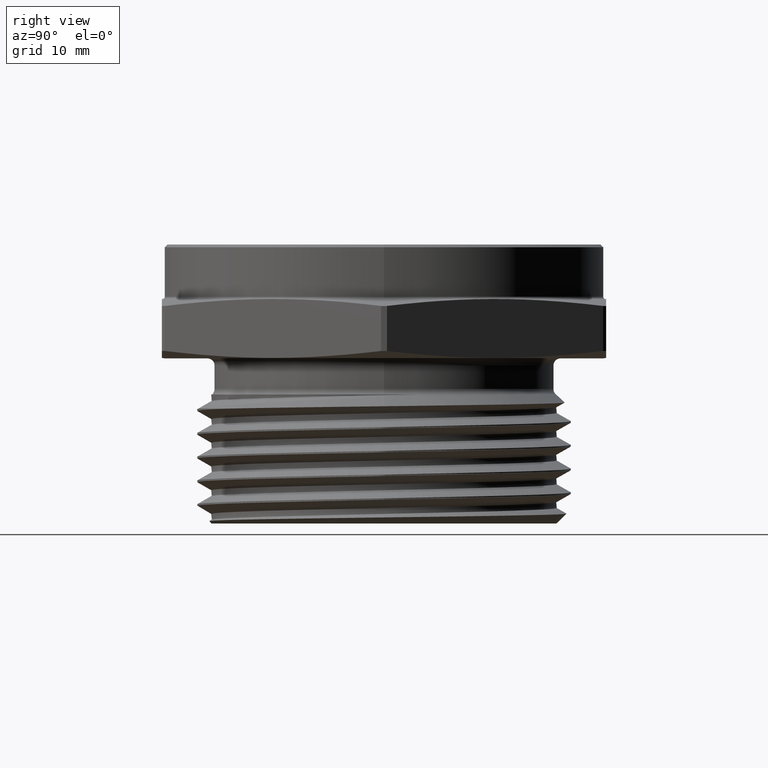
[diagram: clean part render]
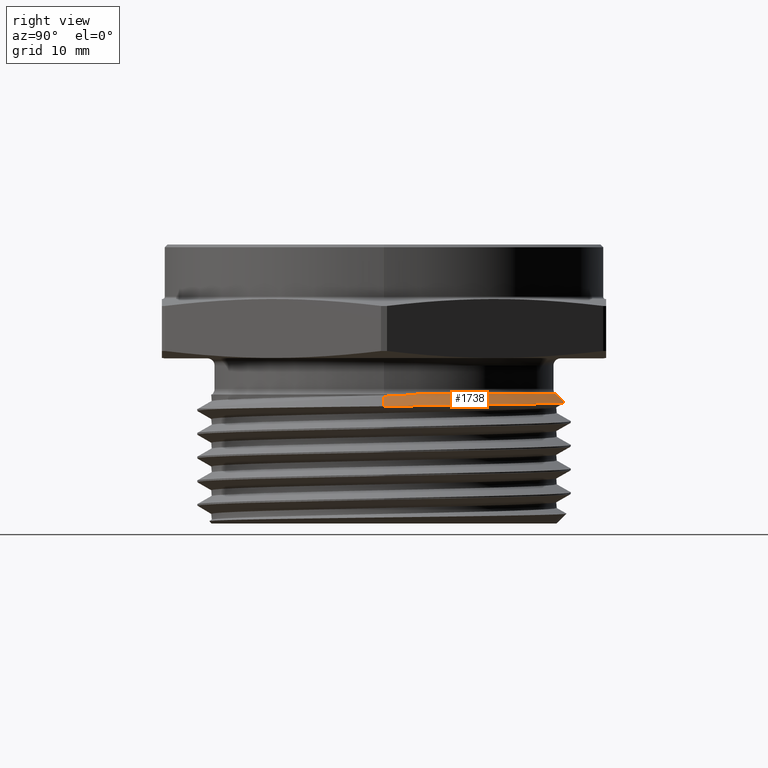
[diagram: same view with one face highlighted and labeled with its STEP entity id]
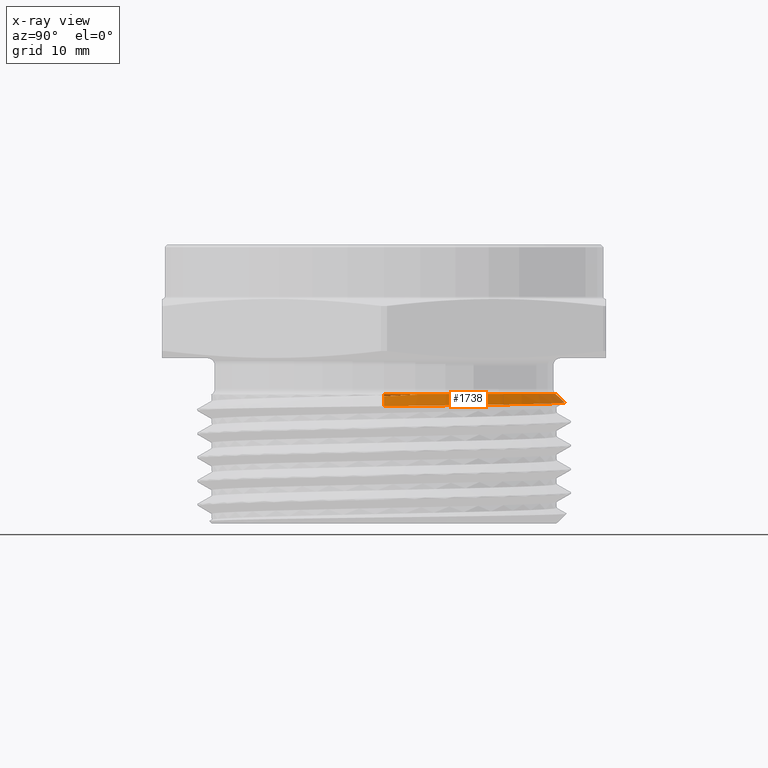
[diagram: x-ray of the same camera — body ghosted, the highlighted face saturated]
A machine part, right view. The second image highlights one B-rep face of the part: STEP entity #1738.
The next image is the same camera in x-ray: the body ghosted, the highlighted face saturated — about 1% of this face is hidden behind the body in this view.
In plain terms, the highlighted conical surface has half-angle 45 deg.
Its self-contained STEP definition (entity closure, byte-faithful):
#15 = B_SPLINE_CURVE_WITH_KNOTS ( 'NONE', 3,
 ( #656, #663, #668, #669 ),
 .UNSPECIFIED., .F., .F.,
 ( 4, 4 ),
 ( 0.02245773562977112000, 0.02560065844482746500 ),
 .UNSPECIFIED. ) ;
#18 = B_SPLINE_CURVE_WITH_KNOTS ( 'NONE', 3,
 ( #732, #728, #734, #735, #736, #737 ),
 .UNSPECIFIED., .F., .F.,
 ( 4, 2, 4 ),
 ( 2.720399444583038000E-015, 0.001553246563255459300, 0.003106493126508198100 ),
 .UNSPECIFIED. ) ;
#19 = B_SPLINE_CURVE_WITH_KNOTS ( 'NONE', 3,
 ( #738, #739, #744, #745, #746, #747, #748, #749, #750, #751, #752, #753, #754, #755, #756, #757, #758, #759, #760, #761, #762, #763, #764, #765, #766, #767, #768, #769, #770, #771, #772, #773, #774, #775, #776, #777, #778, #779, #780, #781, #782, #783, #784, #785, #786, #787, #788, #789, #790, #791, #792, #793 ),
 .UNSPECIFIED., .F., .F.,
 ( 4, 2, 2, 2, 2, 2, 2, 2, 2, 2, 2, 2, 2, 2, 2, 2, 2, 2, 2, 2, 2, 2, 2, 2, 2, 4 ),
 ( 0.02769738303600014600, 0.02928830172130021300, 0.03087922040660027700, 0.03406105777720040700, 0.03565197646250047000, 0.03724289514780053400, 0.03883381383310059700, 0.04042473251840066100, 0.04360656988900078700, 0.04519748857430085100, 0.04678840725960091400, 0.04997024463020104800, 0.05156116331550111800, 0.05315208200080118200, 0.05633391937140130900, 0.05951575674200144200, 0.06110667542730151300, 0.06269759411260157600, 0.06587943148320171700, 0.06747035016850178000, 0.06906126885380184400, 0.07224310622440197100, 0.07383402490970203400, 0.07542494359500209700, 0.07701586228030217500, 0.07860678096560223800 ),
 .UNSPECIFIED. ) ;
#143 = EDGE_LOOP ( 'NONE', ( #202, #203, #204, #205, #206, #207, #208 ) ) ;
#161 = VERTEX_POINT ( 'NONE', #3334 ) ;
#202 = ORIENTED_EDGE ( 'NONE', *, *, #1997, .F. ) ;
#203 = ORIENTED_EDGE ( 'NONE', *, *, #1993, .T. ) ;
#204 = ORIENTED_EDGE ( 'NONE', *, *, #1996, .F. ) ;
#205 = ORIENTED_EDGE ( 'NONE', *, *, #1989, .F. ) ;
#206 = ORIENTED_EDGE ( 'NONE', *, *, #1992, .T. ) ;
#207 = ORIENTED_EDGE ( 'NONE', *, *, #1998, .F. ) ;
#208 = ORIENTED_EDGE ( 'NONE', *, *, #1995, .F. ) ;
#656 = CARTESIAN_POINT ( 'NONE',  ( 0.6129016002266093300, -5.631799335591106200E-013, -0.1330792697562727700 ) ) ;
#663 = CARTESIAN_POINT ( 'NONE',  ( 0.6108917757817330400, 0.04059913264845195500, -0.1310694453113593900 ) ) ;
#668 = CARTESIAN_POINT ( 'NONE',  ( 0.6048198897454479800, 0.08094845224201294200, -0.1289881068263756300 ) ) ;
#669 = CARTESIAN_POINT ( 'NONE',  ( 0.5944536281719904300, 0.1210334931048311200, -0.1268276695296611800 ) ) ;
#671 = DIRECTION ( 'NONE',  ( -0.7071067811865493500, 0.0000000000000000000, -0.7071067811865456900 ) ) ;
#701 = CARTESIAN_POINT ( 'NONE',  ( 0.6048223304703364000, 7.406937310633401300E-017, -0.1249999999999999000 ) ) ;
#702 = CARTESIAN_POINT ( 'NONE',  ( 0.6048223304703364000, 7.406937310633401300E-017, -0.1249999999999999000 ) ) ;
#725 = CARTESIAN_POINT ( 'NONE',  ( -0.6048223304703364000, 0.0000000000000000000, -0.1249999999999999000 ) ) ;
#726 = DIRECTION ( 'NONE',  ( 0.7071067811865493500, 8.659560562354955000E-017, -0.7071067811865456900 ) ) ;
#727 = DIRECTION ( 'NONE',  ( 0.7071067811865493500, 8.659560562354955000E-017, -0.7071067811865456900 ) ) ;
#728 = CARTESIAN_POINT ( 'NONE',  ( 0.5985228310356489600, 0.1010476830284672800, -0.1268276695296635100 ) ) ;
#732 = CARTESIAN_POINT ( 'NONE',  ( 0.5944536281719904300, 0.1210334931048311200, -0.1268276695296611800 ) ) ;
#734 = CARTESIAN_POINT ( 'NONE',  ( 0.6015837808941704200, 0.08083243523769494100, -0.1268276695296636200 ) ) ;
#735 = CARTESIAN_POINT ( 'NONE',  ( 0.6056437281203342900, 0.04040547747377845600, -0.1268276695296635900 ) ) ;
#736 = CARTESIAN_POINT ( 'NONE',  ( 0.6066500000000002400, 0.02019919955713285800, -0.1268276695296636500 ) ) ;
#737 = CARTESIAN_POINT ( 'NONE',  ( 0.6066500000000002400, -9.008570109740810600E-016, -0.1268276695296635400 ) ) ;
#738 = CARTESIAN_POINT ( 'NONE',  ( -0.6215329153199463700, 5.709922702190077100E-013, -0.1417105848496098800 ) ) ;
#739 = CARTESIAN_POINT ( 'NONE',  ( -0.6218038588298322500, 0.02071372991814923700, -0.1419815283595149100 ) ) ;
#740 = CARTESIAN_POINT ( 'NONE',  ( 0.0000000000000000000, 0.0000000000000000000, -0.1249999999999999000 ) ) ;
#741 = DIRECTION ( 'NONE',  ( -0.0000000000000000000, -0.0000000000000000000, 1.000000000000000000 ) ) ;
#742 = DIRECTION ( 'NONE',  ( 1.000000000000000000, 0.0000000000000000000, 0.0000000000000000000 ) ) ;
#744 = CARTESIAN_POINT ( 'NONE',  ( -0.6210470801214494900, 0.04150238621615854500, -0.1422574870576855700 ) ) ;
#745 = CARTESIAN_POINT ( 'NONE',  ( -0.6174088940177964200, 0.08323459625465728900, -0.1428197143777754900 ) ) ;
#746 = CARTESIAN_POINT ( 'NONE',  ( -0.6145438439874993900, 0.1039298074478916400, -0.1431026575808558900 ) ) ;
#747 = CARTESIAN_POINT ( 'NONE',  ( -0.6029662588955236900, 0.1650582068360486300, -0.1439504805180528400 ) ) ;
#748 = CARTESIAN_POINT ( 'NONE',  ( -0.5912834387099477100, 0.2047441157589591200, -0.1445170530654176200 ) ) ;
#749 = CARTESIAN_POINT ( 'NONE',  ( -0.5677263147459585800, 0.2626502439137135000, -0.1453689771178024200 ) ) ;
#750 = CARTESIAN_POINT ( 'NONE',  ( -0.5588209532333988600, 0.2817318199607222700, -0.1456541397951190700 ) ) ;
#751 = CARTESIAN_POINT ( 'NONE',  ( -0.5393540349162625500, 0.3185121996426659700, -0.1462127604042327300 ) ) ;
#752 = CARTESIAN_POINT ( 'NONE',  ( -0.5287578538748254300, 0.3363137115949262300, -0.1464877016376370800 ) ) ;
#753 = CARTESIAN_POINT ( 'NONE',  ( -0.5058719063115533200, 0.3707611173368758900, -0.1470290613301428700 ) ) ;
#754 = CARTESIAN_POINT ( 'NONE',  ( -0.4935827075500975300, 0.3874073862782294000, -0.1472962424118164600 ) ) ;
#755 = CARTESIAN_POINT ( 'NONE',  ( -0.4673110758366932900, 0.4195441757696017300, -0.1478450092408961900 ) ) ;
#756 = CARTESIAN_POINT ( 'NONE',  ( -0.4532590534512177000, 0.4350991379774284400, -0.1481250350244891500 ) ) ;
#757 = CARTESIAN_POINT ( 'NONE',  ( -0.4089304690158602800, 0.4794828074889728200, -0.1489696453673241000 ) ) ;
#758 = CARTESIAN_POINT ( 'NONE',  ( -0.3768978241600682300, 0.5057154451159435700, -0.1495316611519433000 ) ) ;
#759 = CARTESIAN_POINT ( 'NONE',  ( -0.3252393082592667800, 0.5401796790011893500, -0.1503731031962092000 ) ) ;
#760 = CARTESIAN_POINT ( 'NONE',  ( -0.3074137802946397800, 0.5508476397906428800, -0.1506533210899980400 ) ) ;
#761 = CARTESIAN_POINT ( 'NONE',  ( -0.2705148763095397400, 0.5704948753800219700, -0.1512132420389302200 ) ) ;
#762 = CARTESIAN_POINT ( 'NONE',  ( -0.2515289605740692000, 0.5794145083312053400, -0.1514915101176861300 ) ) ;
#763 = CARTESIAN_POINT ( 'NONE',  ( -0.1939261795411546500, 0.6030790865717571300, -0.1523077567387710600 ) ) ;
#764 = CARTESIAN_POINT ( 'NONE',  ( -0.1543161754404692200, 0.6149548383244256600, -0.1528337945947762000 ) ) ;
#765 = CARTESIAN_POINT ( 'NONE',  ( -0.09310017355402723500, 0.6269508057438633000, -0.1536622111634523000 ) ) ;
#766 = CARTESIAN_POINT ( 'NONE',  ( -0.07227676099102418900, 0.6299761753387742600, -0.1539436398238878700 ) ) ;
#767 = CARTESIAN_POINT ( 'NONE',  ( -0.03076572673264227700, 0.6339225939843471400, -0.1545039093577085500 ) ) ;
#768 = CARTESIAN_POINT ( 'NONE',  ( -0.01004666517578324900, 0.6348629394433159500, -0.1547831803923372900 ) ) ;
#769 = CARTESIAN_POINT ( 'NONE',  ( 0.05200373704192859400, 0.6346585996117409800, -0.1556184574536970400 ) ) ;
#770 = CARTESIAN_POINT ( 'NONE',  ( 0.09322933998520113700, 0.6305181335877602100, -0.1561719414371110800 ) ) ;
#771 = CARTESIAN_POINT ( 'NONE',  ( 0.1753866155625770900, 0.6139096010059848000, -0.1572721290942073500 ) ) ;
#772 = CARTESIAN_POINT ( 'NONE',  ( 0.2150519598569933800, 0.6016779370583121800, -0.1577931105741725000 ) ) ;
#773 = CARTESIAN_POINT ( 'NONE',  ( 0.2723133941254887200, 0.5778071647573435100, -0.1586039734868152100 ) ) ;
#774 = CARTESIAN_POINT ( 'NONE',  ( 0.2910375871541865900, 0.5689182681134415900, -0.1588773313767012600 ) ) ;
#775 = CARTESIAN_POINT ( 'NONE',  ( 0.3277445798553639800, 0.5492367542025139400, -0.1594302854064182400 ) ) ;
#776 = CARTESIAN_POINT ( 'NONE',  ( 0.3457878301561909100, 0.5383926572690169700, -0.1597109362896742000 ) ) ;
#777 = CARTESIAN_POINT ( 'NONE',  ( 0.3976663305619352300, 0.5036505378602566000, -0.1605448020241140600 ) ) ;
#778 = CARTESIAN_POINT ( 'NONE',  ( 0.4296210660305641600, 0.4774094392850440900, -0.1610950096241039500 ) ) ;
#779 = CARTESIAN_POINT ( 'NONE',  ( 0.4736522485946942900, 0.4334814985570205600, -0.1619119705644130900 ) ) ;
#780 = CARTESIAN_POINT ( 'NONE',  ( 0.4877016146806667500, 0.4180395858824527700, -0.1621834378628809200 ) ) ;
#781 = CARTESIAN_POINT ( 'NONE',  ( 0.5143275705493739500, 0.3857044241241796600, -0.1627212080252343200 ) ) ;
#782 = CARTESIAN_POINT ( 'NONE',  ( 0.5267414257750894200, 0.3690125122132990600, -0.1629822537376817400 ) ) ;
#783 = CARTESIAN_POINT ( 'NONE',  ( 0.5614046881323357900, 0.3174337695627977900, -0.1637794879243988600 ) ) ;
#784 = CARTESIAN_POINT ( 'NONE',  ( 0.5810915618581776700, 0.2810529915233702100, -0.1643208587273889700 ) ) ;
#785 = CARTESIAN_POINT ( 'NONE',  ( 0.6053914633901342800, 0.2234325812485391800, -0.1651478297151828000 ) ) ;
#786 = CARTESIAN_POINT ( 'NONE',  ( 0.6126143565326948000, 0.2036714205870761600, -0.1654265274257759900 ) ) ;
#787 = CARTESIAN_POINT ( 'NONE',  ( 0.6249834839416760200, 0.1639657177018087300, -0.1659770214987227600 ) ) ;
#788 = CARTESIAN_POINT ( 'NONE',  ( 0.6301777371656005500, 0.1439202555174083600, -0.1662502904844260200 ) ) ;
#789 = CARTESIAN_POINT ( 'NONE',  ( 0.6386207215694510400, 0.1034509364695687100, -0.1667929596785433200 ) ) ;
#790 = CARTESIAN_POINT ( 'NONE',  ( 0.6418694168686147600, 0.08302707262715369700, -0.1670623597898651100 ) ) ;
#791 = CARTESIAN_POINT ( 'NONE',  ( 0.6464017338796738100, 0.04179714805959479400, -0.1675972881243667500 ) ) ;
#792 = CARTESIAN_POINT ( 'NONE',  ( 0.6476859646216158700, 0.02092582694116786700, -0.1678636341513118400 ) ) ;
#793 = CARTESIAN_POINT ( 'NONE',  ( 0.6479485234955750800, 1.019868917283024600E-012, -0.1681261930252378700 ) ) ;
#812 = CARTESIAN_POINT ( 'NONE',  ( 0.6129016002266093300, -5.631799335591106200E-013, -0.1330792697562727700 ) ) ;
#817 = CARTESIAN_POINT ( 'NONE',  ( -0.6215329153199463700, 5.709922702190077100E-013, -0.1417105848496098800 ) ) ;
#819 = CARTESIAN_POINT ( 'NONE',  ( 0.6066500000000002400, -9.008570109740810600E-016, -0.1268276695296635400 ) ) ;
#830 = CARTESIAN_POINT ( 'NONE',  ( -0.6048223304703364000, 0.0000000000000000000, -0.1249999999999999000 ) ) ;
#847 = CARTESIAN_POINT ( 'NONE',  ( 0.5944536281719904300, 0.1210334931048311200, -0.1268276695296611800 ) ) ;
#871 = CARTESIAN_POINT ( 'NONE',  ( 0.6048223304703364000, 7.721840965018954500E-017, -0.1249999999999999000 ) ) ;
#1253 = DIRECTION ( 'NONE',  ( -1.000000000000000000, 0.0000000000000000000, 0.0000000000000000000 ) ) ;
#1254 = CARTESIAN_POINT ( 'NONE',  ( 0.0000000000000000000, 0.0000000000000000000, -0.1249999999999999000 ) ) ;
#1255 = DIRECTION ( 'NONE',  ( 0.0000000000000000000, 0.0000000000000000000, -1.000000000000000000 ) ) ;
#1738 = ADVANCED_FACE ( 'NONE', ( #2147 ), #2161, .T. ) ;
#1989 = EDGE_CURVE ( 'NONE', #2058, #2093, #15, .T. ) ;
#1992 = EDGE_CURVE ( 'NONE', #2058, #161, #2379, .T. ) ;
#1993 = EDGE_CURVE ( 'NONE', #2117, #2065, #2377, .T. ) ;
#1995 = EDGE_CURVE ( 'NONE', #2076, #2063, #2382, .T. ) ;
#1996 = EDGE_CURVE ( 'NONE', #2093, #2065, #18, .T. ) ;
#1997 = EDGE_CURVE ( 'NONE', #2117, #2076, #2384, .T. ) ;
#1998 = EDGE_CURVE ( 'NONE', #2063, #161, #19, .T. ) ;
#2058 = VERTEX_POINT ( 'NONE', #812 ) ;
#2063 = VERTEX_POINT ( 'NONE', #817 ) ;
#2065 = VERTEX_POINT ( 'NONE', #819 ) ;
#2076 = VERTEX_POINT ( 'NONE', #830 ) ;
#2093 = VERTEX_POINT ( 'NONE', #847 ) ;
#2117 = VERTEX_POINT ( 'NONE', #871 ) ;
#2147 = FACE_OUTER_BOUND ( 'NONE', #143, .T. ) ;
#2161 = CONICAL_SURFACE ( 'NONE', #2403, 0.6048223304703364000, 0.7853981633974509400 ) ;
#2377 = LINE ( 'NONE', #702, #2381 ) ;
#2378 = VECTOR ( 'NONE', #726, 39.37007874015748100 ) ;
#2379 = LINE ( 'NONE', #701, #2378 ) ;
#2381 = VECTOR ( 'NONE', #727, 39.37007874015748100 ) ;
#2382 = LINE ( 'NONE', #725, #2383 ) ;
#2383 = VECTOR ( 'NONE', #671, 39.37007874015748100 ) ;
#2384 = CIRCLE ( 'NONE', #2509, 0.6048223304703364000 ) ;
#2403 = AXIS2_PLACEMENT_3D ( 'NONE', #1254, #1255, #1253 ) ;
#2509 = AXIS2_PLACEMENT_3D ( 'NONE', #740, #741, #742 ) ;
#3334 = CARTESIAN_POINT ( 'NONE',  ( 0.6479485234955750800, 1.019868917283024600E-012, -0.1681261930252378700 ) ) ;